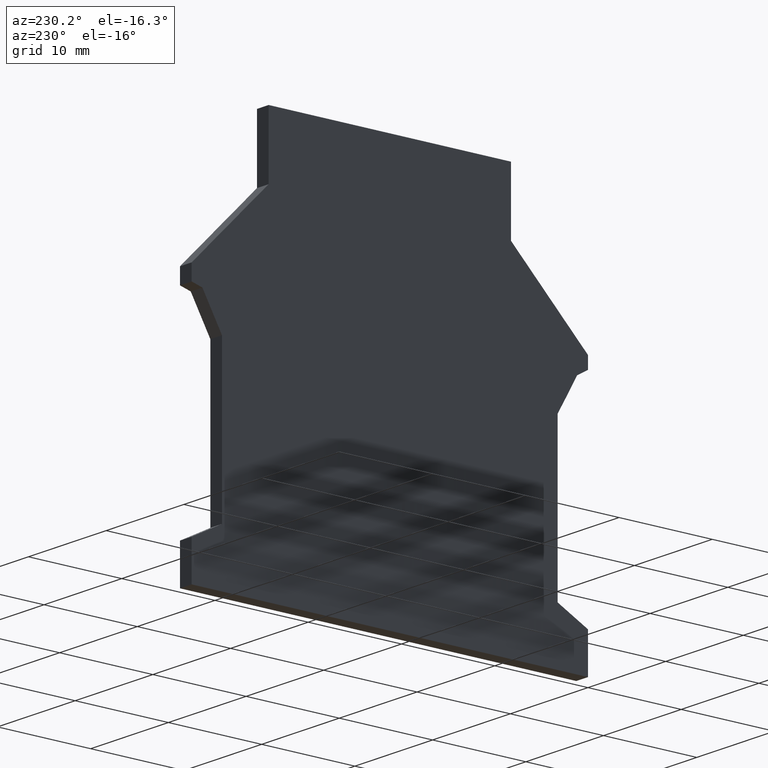
[diagram: clean part render]
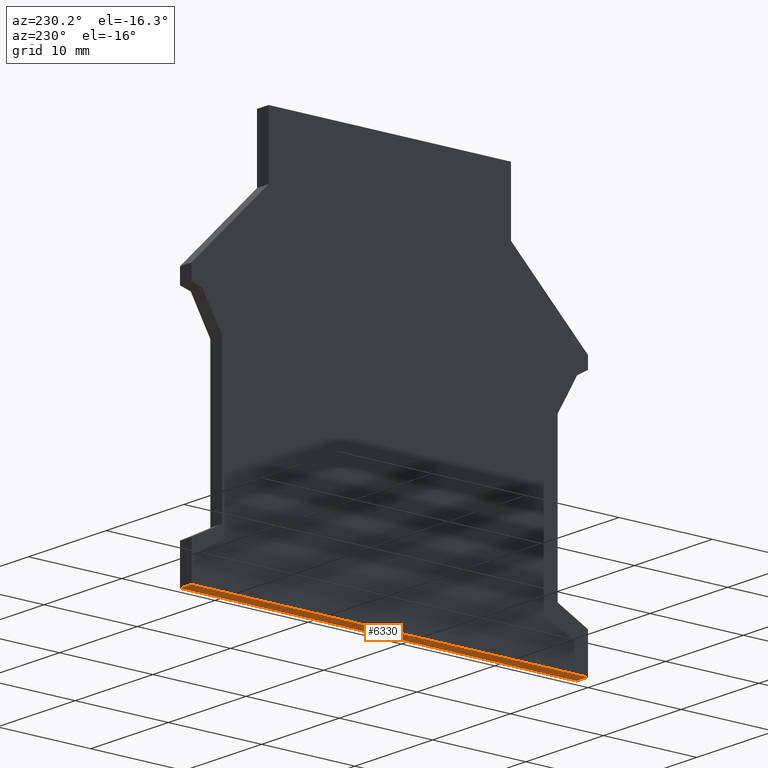
[diagram: same view with one face highlighted and labeled with its STEP entity id]
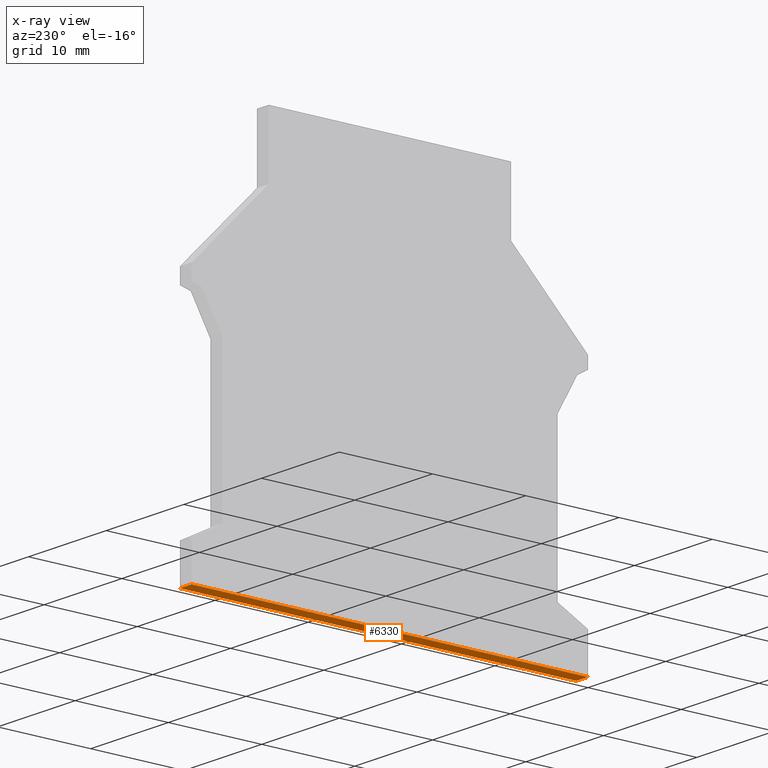
[diagram: x-ray of the same camera — body ghosted, the highlighted face saturated]
A machine part, auxiliary view. The second image highlights one B-rep face of the part: STEP entity #6330.
The next image is the same camera in x-ray: the body ghosted, the highlighted face saturated — about 0% of this face is hidden behind the body in this view.
In plain terms, the highlighted planar face has unit normal (0, 0, -1).
Its self-contained STEP definition (entity closure, byte-faithful):
#1060=CARTESIAN_POINT('',(24.7166321988984,40.4035915835004,-1.5));
#1070=VERTEX_POINT('',#1060);
#1100=CARTESIAN_POINT('',(0.,40.4035915835004,-1.5));
#1110=DIRECTION('',(1.,0.,0.));
#1120=VECTOR('',#1110,1.);
#1130=LINE('',#1100,#1120);
#1140=CARTESIAN_POINT('',(67.2166321988984,40.4035915835004,-1.5));
#1150=VERTEX_POINT('',#1140);
#1160=EDGE_CURVE('',#1070,#1150,#1130,.T.);
#2500=CARTESIAN_POINT('',(67.2166321988984,40.4035915835004,0.));
#2510=DIRECTION('',(0.,0.,1.));
#2520=VECTOR('',#2510,1.);
#2530=LINE('',#2500,#2520);
#2540=CARTESIAN_POINT('',(67.2166321988984,40.4035915835004,
-9.8846750628603E-16));
#2550=VERTEX_POINT('',#2540);
#2560=EDGE_CURVE('',#1150,#2550,#2530,.T.);
#4520=CARTESIAN_POINT('',(0.,40.4035915835004,2.69111469356893E-15));
#4530=DIRECTION('',(1.,0.,-5.47421386564985E-17));
#4540=VECTOR('',#4530,1.);
#4550=LINE('',#4520,#4540);
#4560=CARTESIAN_POINT('',(24.7166321988984,40.4035915835004,
1.33807338661516E-15));
#4570=VERTEX_POINT('',#4560);
#4580=EDGE_CURVE('',#4570,#2550,#4550,.T.);
#6170=CARTESIAN_POINT('',(25.7166321988984,40.4035915835004,0.));
#6180=DIRECTION('',(-0.,-1.,-0.));
#6190=DIRECTION('',(-1.,0.,0.));
#6200=AXIS2_PLACEMENT_3D('',#6170,#6180,#6190);
#6210=PLANE('',#6200);
#6220=ORIENTED_EDGE('',*,*,#2560,.T.);
#6230=ORIENTED_EDGE('',*,*,#1160,.T.);
#6240=CARTESIAN_POINT('',(24.7166321988984,40.4035915835004,0.));
#6250=DIRECTION('',(0.,0.,1.));
#6260=VECTOR('',#6250,1.);
#6270=LINE('',#6240,#6260);
#6280=EDGE_CURVE('',#1070,#4570,#6270,.T.);
#6290=ORIENTED_EDGE('',*,*,#6280,.F.);
#6300=ORIENTED_EDGE('',*,*,#4580,.F.);
#6310=EDGE_LOOP('',(#6300,#6290,#6230,#6220));
#6320=FACE_OUTER_BOUND('',#6310,.T.);
#6330=ADVANCED_FACE('',(#6320),#6210,.T.);